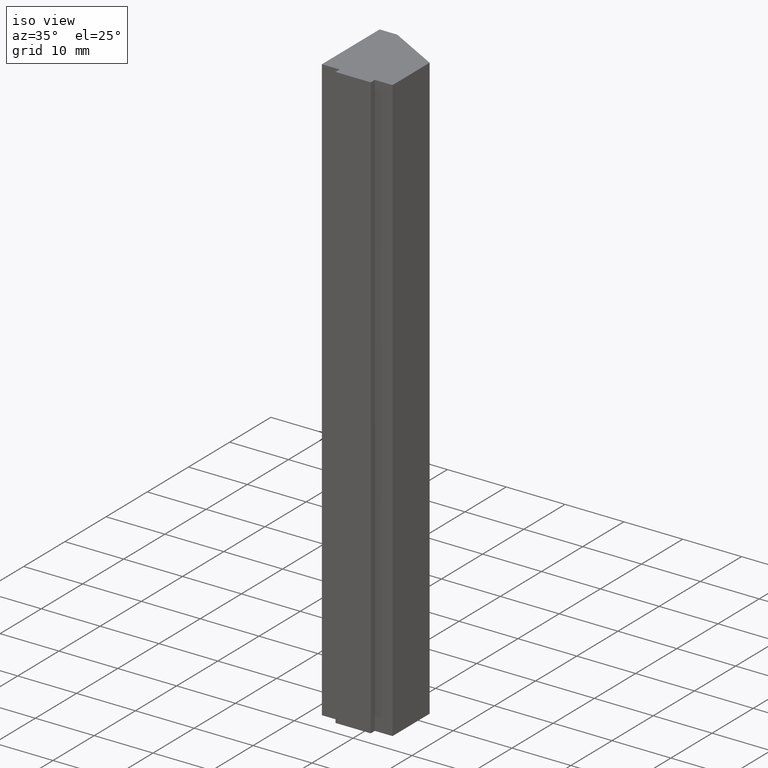
[diagram: clean part render]
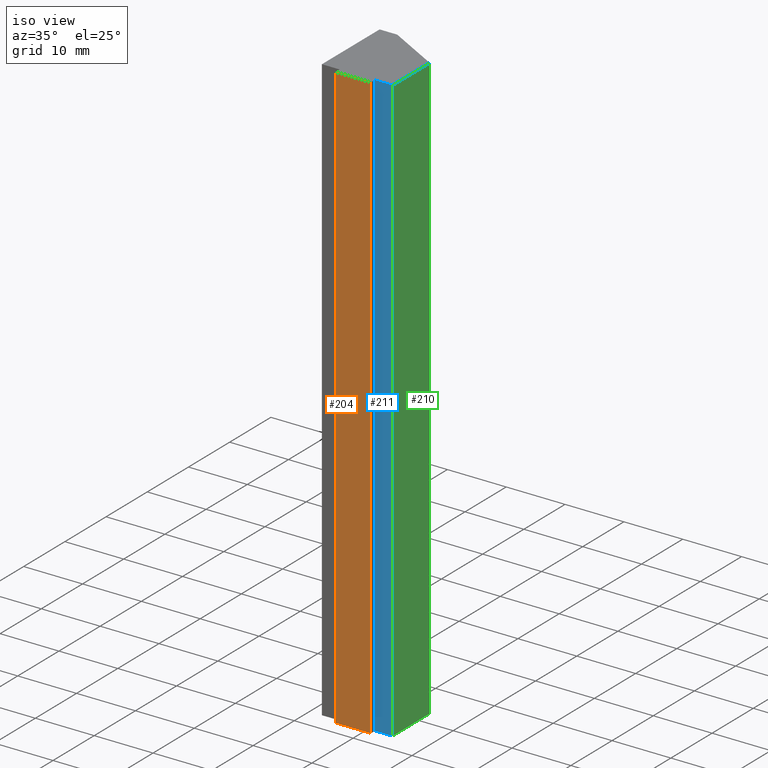
[diagram: same view with three faces highlighted in distinct colors, each labeled with its STEP entity id]
A machine part, iso view with three faces highlighted in distinct colors.
Their STEP definitions:

[orange] entity #204 — the highlighted planar face has unit normal (0, -1, 0).
#18=FACE_OUTER_BOUND('',#29,.T.);
#29=EDGE_LOOP('',(#150,#151,#152,#153));
#41=LINE('',#305,#68);
#48=LINE('',#319,#75);
#50=LINE('',#323,#77);
#51=LINE('',#324,#78);
#68=VECTOR('',#251,10.);
#75=VECTOR('',#260,10.);
#77=VECTOR('',#264,10.);
#78=VECTOR('',#265,10.);
#95=VERTEX_POINT('',#302);
#96=VERTEX_POINT('',#304);
#102=VERTEX_POINT('',#317);
#103=VERTEX_POINT('',#322);
#113=EDGE_CURVE('',#96,#95,#41,.T.);
#120=EDGE_CURVE('',#102,#95,#48,.T.);
#122=EDGE_CURVE('',#102,#103,#50,.T.);
#123=EDGE_CURVE('',#103,#96,#51,.T.);
#150=ORIENTED_EDGE('',*,*,#122,.T.);
#151=ORIENTED_EDGE('',*,*,#123,.T.);
#152=ORIENTED_EDGE('',*,*,#113,.T.);
#153=ORIENTED_EDGE('',*,*,#120,.F.);
#193=PLANE('',#235);
#204=ADVANCED_FACE('',(#18),#193,.T.);
#235=AXIS2_PLACEMENT_3D('',#321,#262,#263);
#251=DIRECTION('',(1.,0.,0.));
#260=DIRECTION('',(0.,0.,-1.));
#262=DIRECTION('center_axis',(0.,-1.,0.));
#263=DIRECTION('ref_axis',(0.,0.,-1.));
#264=DIRECTION('',(-1.,0.,0.));
#265=DIRECTION('',(0.,0.,-1.));
#302=CARTESIAN_POINT('',(3.,-1.11022302462516E-15,-50.));
#304=CARTESIAN_POINT('',(-3.,-1.11022302462516E-15,-50.));
#305=CARTESIAN_POINT('',(3.,-1.11022302462516E-15,-50.));
#317=CARTESIAN_POINT('',(3.,-1.11022302462516E-15,50.));
#319=CARTESIAN_POINT('',(3.,-1.11022302462516E-15,0.));
#321=CARTESIAN_POINT('Origin',(3.,-1.11022302462516E-15,0.));
#322=CARTESIAN_POINT('',(-3.,-1.11022302462516E-15,50.));
#323=CARTESIAN_POINT('',(3.,-1.11022302462516E-15,50.));
#324=CARTESIAN_POINT('',(-3.,-1.11022302462516E-15,0.));

[blue] entity #211 — the highlighted planar face has unit normal (-0, -1, 0).
#25=FACE_OUTER_BOUND('',#36,.T.);
#36=EDGE_LOOP('',(#178,#179,#180,#181));
#39=LINE('',#301,#66);
#49=LINE('',#320,#76);
#63=LINE('',#348,#90);
#64=LINE('',#350,#91);
#66=VECTOR('',#249,10.);
#76=VECTOR('',#261,10.);
#90=VECTOR('',#289,10.);
#91=VECTOR('',#292,10.);
#92=VERTEX_POINT('',#297);
#94=VERTEX_POINT('',#300);
#101=VERTEX_POINT('',#316);
#109=VERTEX_POINT('',#346);
#111=EDGE_CURVE('',#94,#92,#39,.T.);
#121=EDGE_CURVE('',#101,#94,#49,.T.);
#135=EDGE_CURVE('',#92,#109,#63,.T.);
#136=EDGE_CURVE('',#109,#101,#64,.T.);
#178=ORIENTED_EDGE('',*,*,#136,.T.);
#179=ORIENTED_EDGE('',*,*,#121,.T.);
#180=ORIENTED_EDGE('',*,*,#111,.T.);
#181=ORIENTED_EDGE('',*,*,#135,.T.);
#200=PLANE('',#242);
#211=ADVANCED_FACE('',(#25),#200,.T.);
#242=AXIS2_PLACEMENT_3D('',#349,#290,#291);
#249=DIRECTION('',(1.,-1.38777878078145E-16,0.));
#261=DIRECTION('',(0.,0.,-1.));
#289=DIRECTION('',(0.,0.,1.));
#290=DIRECTION('center_axis',(-1.38777878078145E-16,-1.,0.));
#291=DIRECTION('ref_axis',(0.,0.,-1.));
#292=DIRECTION('',(-1.,1.38777878078145E-16,0.));
#297=CARTESIAN_POINT('',(6.,0.999999999999999,-50.));
#300=CARTESIAN_POINT('',(3.,1.,-50.));
#301=CARTESIAN_POINT('',(6.,0.999999999999999,-50.));
#316=CARTESIAN_POINT('',(3.,1.,50.));
#320=CARTESIAN_POINT('',(3.,1.,0.));
#346=CARTESIAN_POINT('',(6.,0.999999999999999,50.));
#348=CARTESIAN_POINT('',(6.,0.999999999999999,0.));
#349=CARTESIAN_POINT('Origin',(6.,0.999999999999999,0.));
#350=CARTESIAN_POINT('',(6.,0.999999999999999,50.));

[green] entity #210 — the highlighted planar face has unit normal (1, 0, 0).
#24=FACE_OUTER_BOUND('',#35,.T.);
#35=EDGE_LOOP('',(#174,#175,#176,#177));
#38=LINE('',#299,#65);
#61=LINE('',#344,#88);
#62=LINE('',#347,#89);
#63=LINE('',#348,#90);
#65=VECTOR('',#248,10.);
#88=VECTOR('',#285,10.);
#89=VECTOR('',#288,10.);
#90=VECTOR('',#289,10.);
#92=VERTEX_POINT('',#297);
#93=VERTEX_POINT('',#298);
#108=VERTEX_POINT('',#342);
#109=VERTEX_POINT('',#346);
#110=EDGE_CURVE('',#92,#93,#38,.T.);
#133=EDGE_CURVE('',#108,#93,#61,.T.);
#134=EDGE_CURVE('',#108,#109,#62,.T.);
#135=EDGE_CURVE('',#92,#109,#63,.T.);
#174=ORIENTED_EDGE('',*,*,#134,.T.);
#175=ORIENTED_EDGE('',*,*,#135,.F.);
#176=ORIENTED_EDGE('',*,*,#110,.T.);
#177=ORIENTED_EDGE('',*,*,#133,.F.);
#199=PLANE('',#241);
#210=ADVANCED_FACE('',(#24),#199,.T.);
#241=AXIS2_PLACEMENT_3D('',#345,#286,#287);
#248=DIRECTION('',(0.,1.,0.));
#285=DIRECTION('',(0.,0.,-1.));
#286=DIRECTION('center_axis',(1.,0.,0.));
#287=DIRECTION('ref_axis',(0.,0.,-1.));
#288=DIRECTION('',(0.,-1.,0.));
#289=DIRECTION('',(0.,0.,1.));
#297=CARTESIAN_POINT('',(6.,0.999999999999999,-50.));
#298=CARTESIAN_POINT('',(6.,10.,-50.));
#299=CARTESIAN_POINT('',(6.,10.,-50.));
#342=CARTESIAN_POINT('',(6.,10.,50.));
#344=CARTESIAN_POINT('',(6.,10.,0.));
#345=CARTESIAN_POINT('Origin',(6.,10.,0.));
#346=CARTESIAN_POINT('',(6.,0.999999999999999,50.));
#347=CARTESIAN_POINT('',(6.,10.,50.));
#348=CARTESIAN_POINT('',(6.,0.999999999999999,0.));